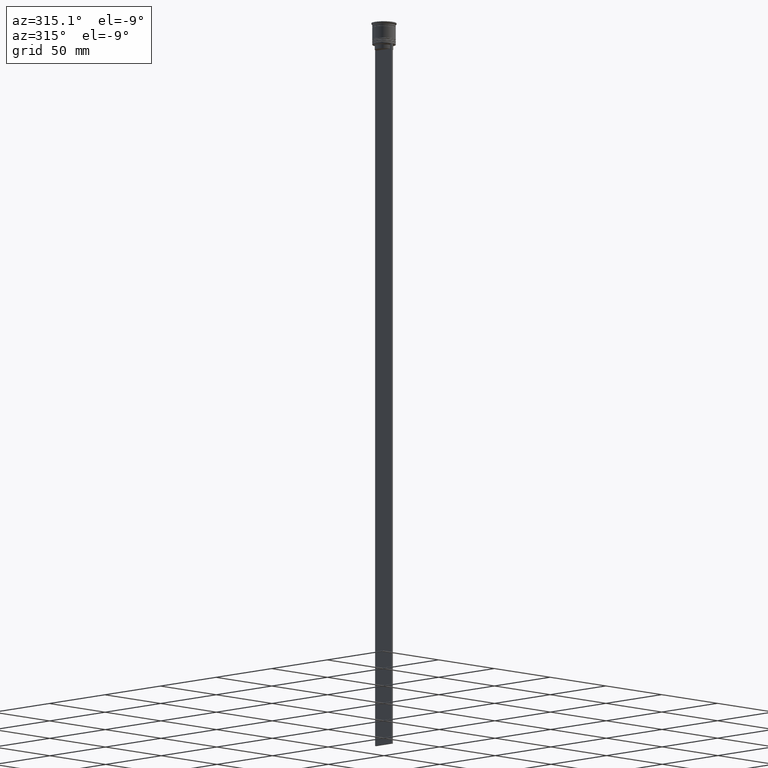
[diagram: clean part render]
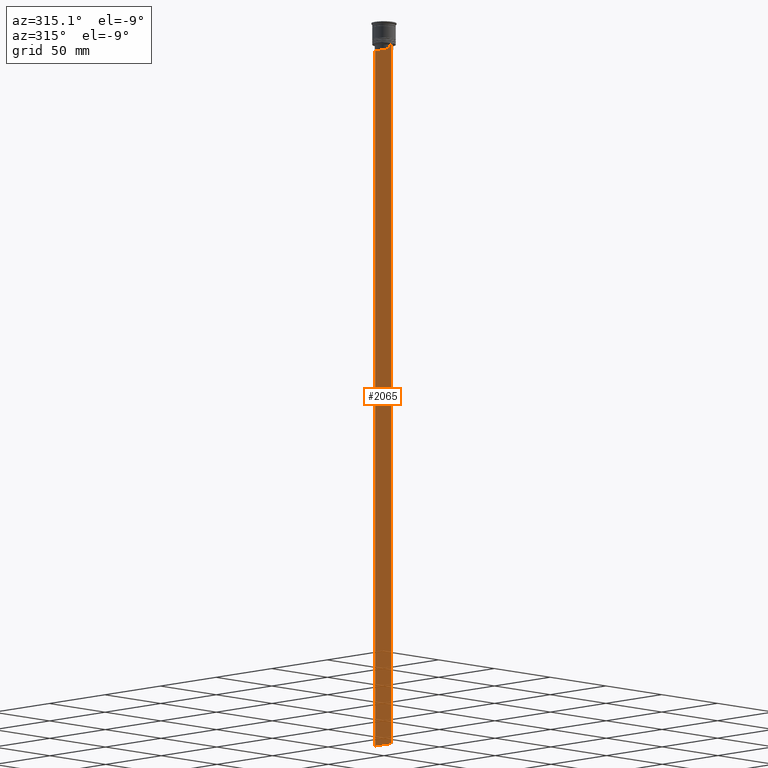
[diagram: same view with one face highlighted and labeled with its STEP entity id]
A machine part, auxiliary view. The second image highlights one B-rep face of the part: STEP entity #2065.
In plain terms, the highlighted planar face has unit normal (-1, 0, 0).
Its self-contained STEP definition (entity closure, byte-faithful):
#6 = CARTESIAN_POINT ( 'NONE',  ( -0.5000000000000000000, -6.380438856379706536, -14.00000000000000178 ) ) ;
#41 = VERTEX_POINT ( 'NONE', #1894 ) ;
#97 = EDGE_CURVE ( 'NONE', #627, #963, #1476, .T. ) ;
#115 = CARTESIAN_POINT ( 'NONE',  ( -0.5000000000000000000, -7.499999999999999112, -464.0000000000000000 ) ) ;
#147 = VERTEX_POINT ( 'NONE', #496 ) ;
#185 = AXIS2_PLACEMENT_3D ( 'NONE', #727, #322, #355 ) ;
#202 = EDGE_CURVE ( 'NONE', #2302, #1370, #681, .T. ) ;
#223 = CARTESIAN_POINT ( 'NONE',  ( -0.5000000000000000000, 6.380438856379706536, -14.00000000000000178 ) ) ;
#245 = VERTEX_POINT ( 'NONE', #1022 ) ;
#246 = EDGE_CURVE ( 'NONE', #1734, #245, #1853, .T. ) ;
#271 = EDGE_CURVE ( 'NONE', #1358, #627, #1981, .T. ) ;
#275 = ORIENTED_EDGE ( 'NONE', *, *, #202, .F. ) ;
#291 = ORIENTED_EDGE ( 'NONE', *, *, #486, .F. ) ;
#322 = DIRECTION ( 'NONE',  ( -1.000000000000000000, 0.000000000000000000, 0.000000000000000000 ) ) ;
#342 = CARTESIAN_POINT ( 'NONE',  ( -0.5000000000000000000, 5.878775382679625849, 0.000000000000000000 ) ) ;
#355 = DIRECTION ( 'NONE',  ( 0.000000000000000000, 0.000000000000000000, 1.000000000000000000 ) ) ;
#356 = VECTOR ( 'NONE', #1066, 1000.000000000000000 ) ;
#366 = CARTESIAN_POINT ( 'NONE',  ( -0.5000000000000000000, -5.878775382679625849, -14.50000000000000000 ) ) ;
#394 = DIRECTION ( 'NONE',  ( 0.000000000000000000, 0.000000000000000000, -1.000000000000000000 ) ) ;
#431 = VECTOR ( 'NONE', #2271, 1000.000000000000000 ) ;
#442 = CARTESIAN_POINT ( 'NONE',  ( -0.5000000000000000000, 7.500000000000002665, -14.00000000000000178 ) ) ;
#464 = CARTESIAN_POINT ( 'NONE',  ( -0.5000000000000000000, 6.213239387491007015, -14.16668843563492430 ) ) ;
#472 = CARTESIAN_POINT ( 'NONE',  ( -0.5000000000000000000, -7.499999999999999112, -14.00000000000000178 ) ) ;
#486 = EDGE_CURVE ( 'NONE', #1370, #1955, #2117, .T. ) ;
#496 = CARTESIAN_POINT ( 'NONE',  ( -0.5000000000000000000, 5.878775382679625849, -14.50000000000000000 ) ) ;
#579 = DIRECTION ( 'NONE',  ( 0.000000000000000000, -1.000000000000000000, 0.000000000000000000 ) ) ;
#627 = VERTEX_POINT ( 'NONE', #1436 ) ;
#648 = DIRECTION ( 'NONE',  ( 0.000000000000000000, 1.000000000000000000, 0.000000000000000000 ) ) ;
#681 = B_SPLINE_CURVE_WITH_KNOTS ( 'NONE', 3,
 ( #366, #1683, #1329, #2100 ),
 .UNSPECIFIED., .F., .F.,
 ( 4, 4 ),
 ( 0.02765270321082434479, 0.02836198271238431559 ),
 .UNSPECIFIED. ) ;
#689 = LINE ( 'NONE', #1050, #356 ) ;
#697 = EDGE_CURVE ( 'NONE', #1676, #2302, #822, .T. ) ;
#727 = CARTESIAN_POINT ( 'NONE',  ( -0.5000000000000000000, -7.499999999999999112, 1.033296378372908997 ) ) ;
#729 = CARTESIAN_POINT ( 'NONE',  ( -0.5000000000000000000, -5.878775382679625849, -17.00000000000000000 ) ) ;
#769 = ORIENTED_EDGE ( 'NONE', *, *, #246, .F. ) ;
#802 = LINE ( 'NONE', #2119, #2430 ) ;
#822 = LINE ( 'NONE', #1657, #2190 ) ;
#867 = DIRECTION ( 'NONE',  ( 0.000000000000000000, -1.000000000000000000, 0.000000000000000000 ) ) ;
#877 = LINE ( 'NONE', #1829, #1630 ) ;
#897 = DIRECTION ( 'NONE',  ( 0.000000000000000000, 0.000000000000000000, -1.000000000000000000 ) ) ;
#963 = VERTEX_POINT ( 'NONE', #223 ) ;
#980 = ORIENTED_EDGE ( 'NONE', *, *, #697, .F. ) ;
#1022 = CARTESIAN_POINT ( 'NONE',  ( -0.5000000000000000000, 7.500000000000002665, -464.0000000000000000 ) ) ;
#1050 = CARTESIAN_POINT ( 'NONE',  ( -0.5000000000000000000, -7.499999999999999112, -14.00000000000000178 ) ) ;
#1066 = DIRECTION ( 'NONE',  ( 0.000000000000000000, -1.000000000000000000, 0.000000000000000000 ) ) ;
#1103 = B_SPLINE_CURVE_WITH_KNOTS ( 'NONE', 3,
 ( #1819, #464, #1987, #1213 ),
 .UNSPECIFIED., .F., .F.,
 ( 4, 4 ),
 ( 0.01087727669788152163, 0.01158556069794289788 ),
 .UNSPECIFIED. ) ;
#1111 = ORIENTED_EDGE ( 'NONE', *, *, #2491, .F. ) ;
#1175 = VERTEX_POINT ( 'NONE', #2448 ) ;
#1210 = CARTESIAN_POINT ( 'NONE',  ( -0.5000000000000000000, -7.499999999999999112, -14.00000000000000178 ) ) ;
#1213 = CARTESIAN_POINT ( 'NONE',  ( -0.5000000000000000000, 5.878775382679625849, -14.50000000000000000 ) ) ;
#1264 = VECTOR ( 'NONE', #897, 1000.000000000000000 ) ;
#1274 = PLANE ( 'NONE',  #185 ) ;
#1329 = CARTESIAN_POINT ( 'NONE',  ( -0.5000000000000000000, -6.213239311785844876, -14.16668851110870087 ) ) ;
#1358 = VERTEX_POINT ( 'NONE', #442 ) ;
#1370 = VERTEX_POINT ( 'NONE', #6 ) ;
#1379 = VECTOR ( 'NONE', #1532, 1000.000000000000000 ) ;
#1418 = VECTOR ( 'NONE', #1512, 1000.000000000000000 ) ;
#1436 = CARTESIAN_POINT ( 'NONE',  ( -0.5000000000000000000, 7.383088784512886527, -14.00000000000000178 ) ) ;
#1476 = LINE ( 'NONE', #472, #1907 ) ;
#1494 = LINE ( 'NONE', #2444, #431 ) ;
#1496 = LINE ( 'NONE', #342, #1264 ) ;
#1512 = DIRECTION ( 'NONE',  ( 0.000000000000000000, -1.000000000000000000, 0.000000000000000000 ) ) ;
#1532 = DIRECTION ( 'NONE',  ( 0.000000000000000000, -1.000000000000000000, 0.000000000000000000 ) ) ;
#1548 = ORIENTED_EDGE ( 'NONE', *, *, #271, .F. ) ;
#1577 = DIRECTION ( 'NONE',  ( -0.000000000000000000, -0.000000000000000000, 1.000000000000000000 ) ) ;
#1630 = VECTOR ( 'NONE', #867, 1000.000000000000000 ) ;
#1640 = EDGE_CURVE ( 'NONE', #147, #1175, #1496, .T. ) ;
#1657 = CARTESIAN_POINT ( 'NONE',  ( -0.5000000000000000000, -5.878775382679625849, 0.000000000000000000 ) ) ;
#1676 = VERTEX_POINT ( 'NONE', #729 ) ;
#1683 = CARTESIAN_POINT ( 'NONE',  ( -0.5000000000000000000, -6.046019991840948293, -14.33335703538585726 ) ) ;
#1695 = VECTOR ( 'NONE', #648, 1000.000000000000000 ) ;
#1734 = VERTEX_POINT ( 'NONE', #2485 ) ;
#1818 = ORIENTED_EDGE ( 'NONE', *, *, #1967, .F. ) ;
#1819 = CARTESIAN_POINT ( 'NONE',  ( -0.5000000000000000000, 6.380438856379706536, -14.00000000000000178 ) ) ;
#1829 = CARTESIAN_POINT ( 'NONE',  ( -0.5000000000000000000, 5.899999999999998579, -17.00000000000000000 ) ) ;
#1852 = ORIENTED_EDGE ( 'NONE', *, *, #97, .F. ) ;
#1853 = LINE ( 'NONE', #115, #1695 ) ;
#1866 = EDGE_CURVE ( 'NONE', #41, #1734, #802, .T. ) ;
#1894 = CARTESIAN_POINT ( 'NONE',  ( -0.5000000000000000000, -7.499999999999999112, -14.00000000000000178 ) ) ;
#1907 = VECTOR ( 'NONE', #579, 1000.000000000000000 ) ;
#1944 = EDGE_CURVE ( 'NONE', #963, #147, #1103, .T. ) ;
#1955 = VERTEX_POINT ( 'NONE', #2188 ) ;
#1967 = EDGE_CURVE ( 'NONE', #1175, #1676, #877, .T. ) ;
#1973 = CARTESIAN_POINT ( 'NONE',  ( -0.5000000000000000000, -7.499999999999999112, -14.00000000000000178 ) ) ;
#1980 = ORIENTED_EDGE ( 'NONE', *, *, #1866, .F. ) ;
#1981 = LINE ( 'NONE', #1210, #1379 ) ;
#1987 = CARTESIAN_POINT ( 'NONE',  ( -0.5000000000000000000, 6.046020074006152711, -14.33335695351623151 ) ) ;
#2055 = FACE_OUTER_BOUND ( 'NONE', #2300, .T. ) ;
#2065 = ADVANCED_FACE ( 'NONE', ( #2055 ), #1274, .T. ) ;
#2100 = CARTESIAN_POINT ( 'NONE',  ( -0.5000000000000000000, -6.380438856379706536, -14.00000000000000178 ) ) ;
#2117 = LINE ( 'NONE', #1973, #1418 ) ;
#2118 = EDGE_CURVE ( 'NONE', #1358, #245, #1494, .T. ) ;
#2119 = CARTESIAN_POINT ( 'NONE',  ( -0.5000000000000000000, -7.499999999999999112, 1.033296378372908997 ) ) ;
#2144 = ORIENTED_EDGE ( 'NONE', *, *, #2118, .T. ) ;
#2180 = ORIENTED_EDGE ( 'NONE', *, *, #1640, .F. ) ;
#2188 = CARTESIAN_POINT ( 'NONE',  ( -0.5000000000000000000, -7.383088784512886527, -14.00000000000000178 ) ) ;
#2190 = VECTOR ( 'NONE', #1577, 1000.000000000000000 ) ;
#2271 = DIRECTION ( 'NONE',  ( 0.000000000000000000, 0.000000000000000000, -1.000000000000000000 ) ) ;
#2300 = EDGE_LOOP ( 'NONE', ( #2378, #1852, #1548, #2144, #769, #1980, #1111, #291, #275, #980, #1818, #2180 ) ) ;
#2302 = VERTEX_POINT ( 'NONE', #2305 ) ;
#2305 = CARTESIAN_POINT ( 'NONE',  ( -0.5000000000000000000, -5.878775382679625849, -14.50000000000000000 ) ) ;
#2378 = ORIENTED_EDGE ( 'NONE', *, *, #1944, .F. ) ;
#2430 = VECTOR ( 'NONE', #394, 1000.000000000000000 ) ;
#2444 = CARTESIAN_POINT ( 'NONE',  ( -0.5000000000000000000, 7.500000000000002665, 1.033296378372908997 ) ) ;
#2448 = CARTESIAN_POINT ( 'NONE',  ( -0.5000000000000000000, 5.878775382679625849, -17.00000000000000000 ) ) ;
#2485 = CARTESIAN_POINT ( 'NONE',  ( -0.5000000000000000000, -7.499999999999999112, -464.0000000000000000 ) ) ;
#2491 = EDGE_CURVE ( 'NONE', #1955, #41, #689, .T. ) ;